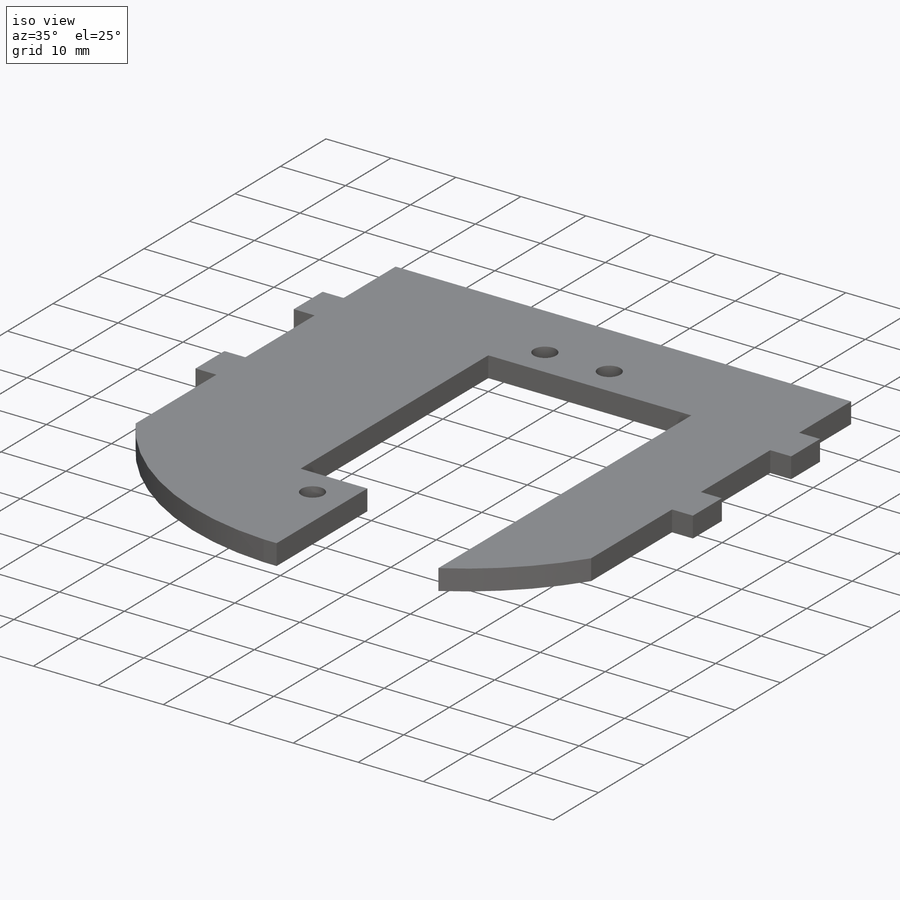
[diagram: iso view]
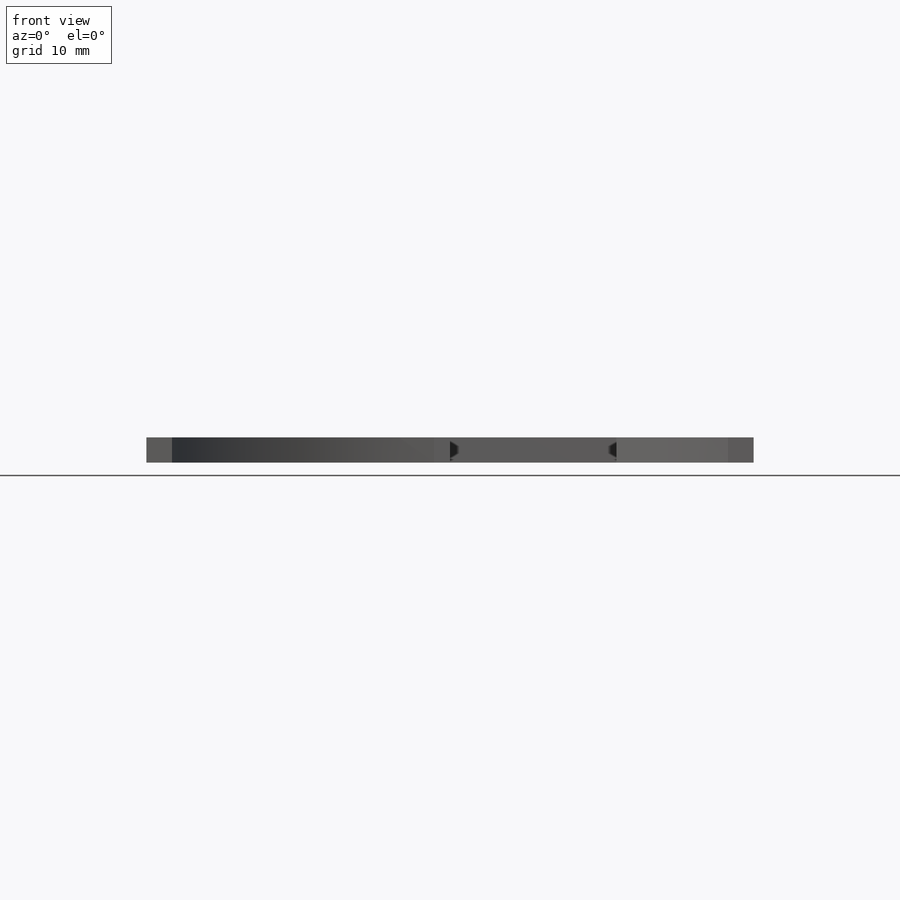
[diagram: front view]
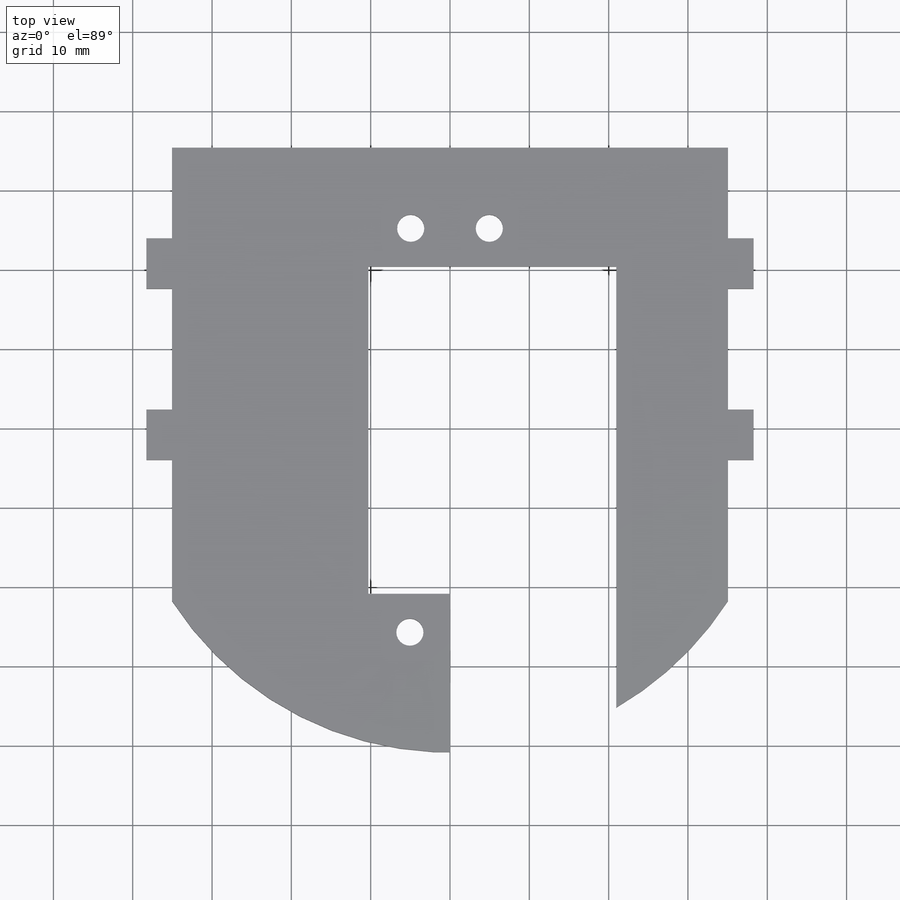
[diagram: top view]
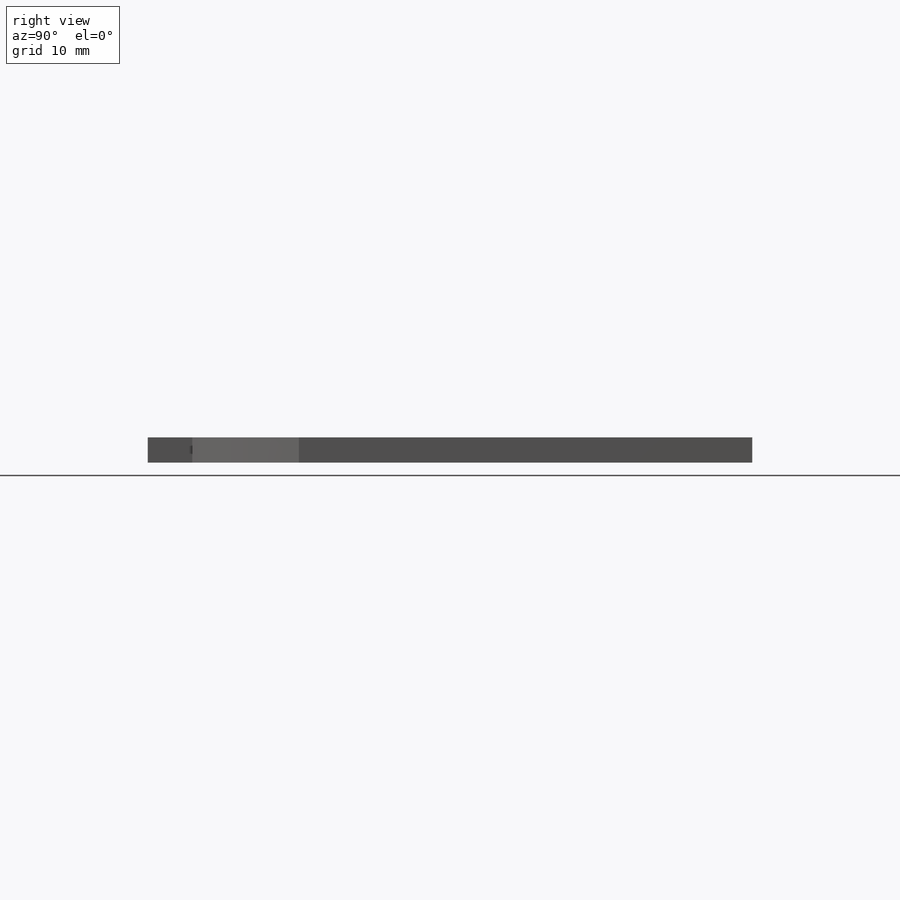
[diagram: right view]
SOLIDWORKS PART (.sldprt)
format: sldprt  version: not decoded by parser v0  size: 398,848 bytes
history: native  units: mm
features: sketch x6, extrude x3, cut_extrude x3, material x1, mirror x1 (+16 scaffold rows collapsed)
feature tree (30):
  scaffold x16  (default folders/planes/origin — collapsed)
  material  "Material <not specified>"
  sketch  "Sketch1"  dims[D1=50.8mm D2=70.104mm]
  extrude  "rectangular base"  Depth=3.175mm
  sketch  "Sketch4"  dims[c1.D1=6.35mm c1.D2=3.2258mm c2.D1=6.35mm c2.D2=6.35mm c2.D3=3.2258mm c2.D4=3.2258mm c2.D5=7.62mm c2.D6=7.62mm]
  extrude  "tab"  Depth=3.175mm
  mirror  "Mirror1"
  sketch  "Sketch8"  dims[D1=25.4mm]
  extrude  "Boss-Extrude2"  Depth=3.175mm
  sketch  "Sketch5"  dims[c1.D1=3.429mm c1.D2=3.429mm c1.D3=3.429mm c1.D4=3.429mm c1.D5=9.91mm c1.D6=9.91mm c1.D7=41.275mm c1.D8=4.826mm c1.D9=4.826mm c1.D10=50.292mm c2.D1=27.686mm]
  cut_extrude  "Cut-Extrude2"  [1 undecoded]
  sketch  "Sketch9"  dims[D1=10.293mm D2=19.939mm D3=10.668mm]
  cut_extrude  "Cut-Extrude3"  [1 undecoded]
  sketch  "Sketch10"  dims[D1=17.78mm]
  cut_extrude  "Cut-Extrude4"  [1 undecoded]
decode coverage: 9 of 13 modeling features carry decoded parameters
note: 3 parameter values undecoded
summary: no parameter record found for 3 features
note: suppression state not decoded; provenance and decode notes live in map.json
